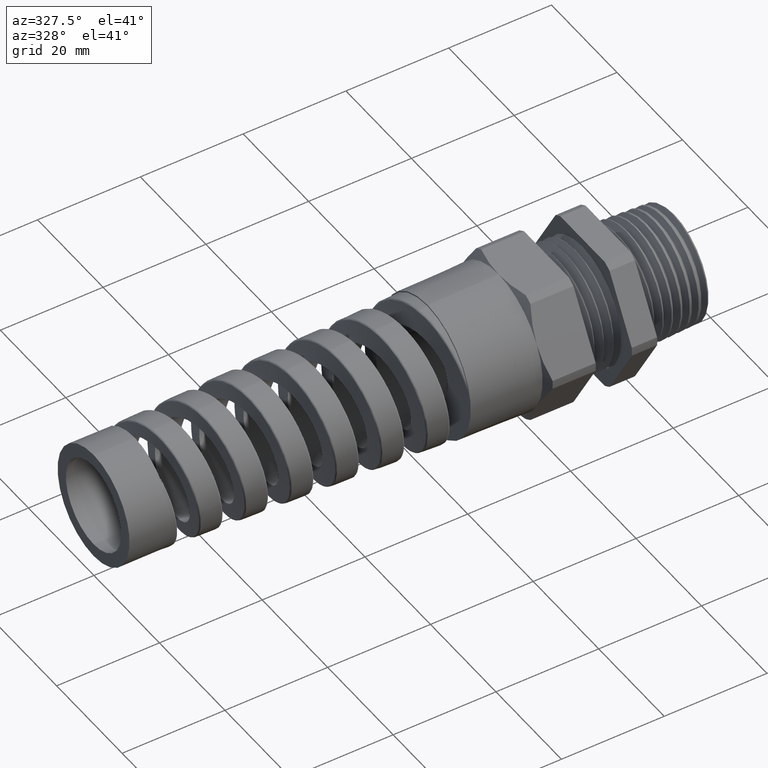
[diagram: clean part render]
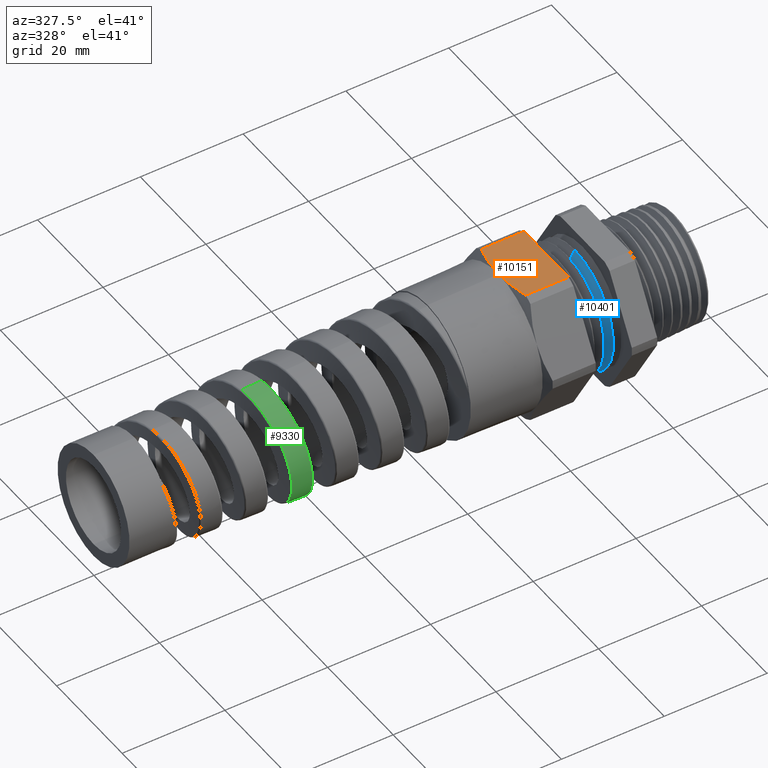
[diagram: same view with three faces highlighted in distinct colors, each labeled with its STEP entity id]
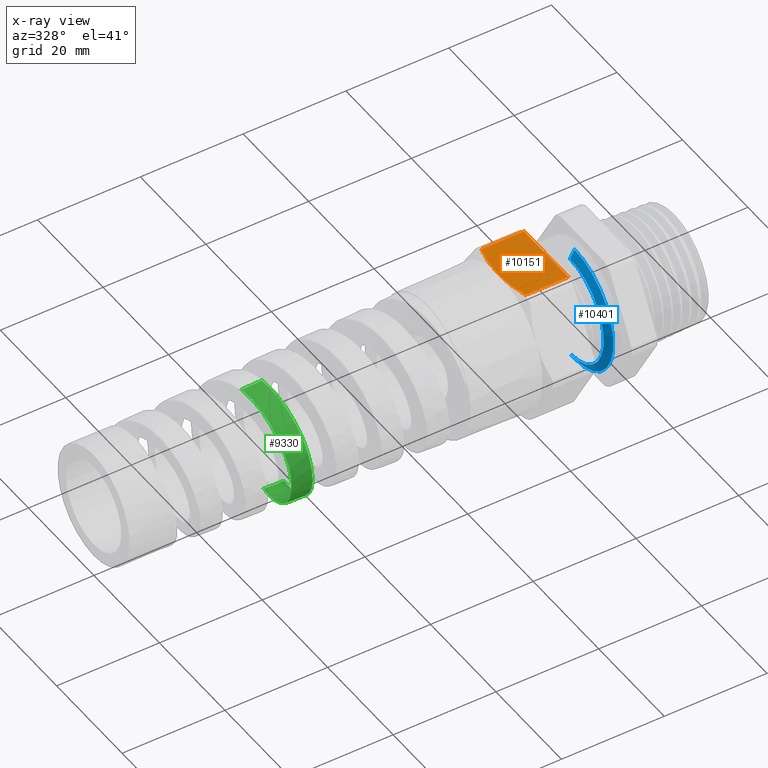
[diagram: x-ray of the same camera — body ghosted, the three highlighted faces saturated]
A machine part, auxiliary view with three faces highlighted in distinct colors.
The next image is the same camera in x-ray (body ghosted, the three faces saturated) — at least one of them is partly hidden behind the body in this view.
Their STEP definitions:

[orange] entity #10151 — the highlighted planar face has unit normal (0, 0, 1).
#3699 = CARTESIAN_POINT ( 'NONE',  ( -0.8375000000000000200, 0.0000000000000000000, 0.5299999999999999200 ) ) ;
#5476 = DIRECTION ( 'NONE',  ( 1.000000000000000000, 0.0000000000000000000, 0.0000000000000000000 ) ) ;
#5477 = VECTOR ( 'NONE', #5476, 39.37007874015748100 ) ;
#5478 = CARTESIAN_POINT ( 'NONE',  ( -2.533243884661831900, -0.2673218285138724300, 0.5299999999999999200 ) ) ;
#5479 = LINE ( 'NONE', #5478, #5477 ) ;
#5480 = CARTESIAN_POINT ( 'NONE',  ( -0.4708333333333333300, -0.2673218285138724300, 0.5299999999999999200 ) ) ;
#5491 = CARTESIAN_POINT ( 'NONE',  ( -0.8007805228795398200, -0.2673218285138724300, 0.5299999999999999200 ) ) ;
#5511 = CARTESIAN_POINT ( 'NONE',  ( -0.4708333333333333300, 0.2673218285138722600, 0.5299999999999999200 ) ) ;
#5512 = DIRECTION ( 'NONE',  ( 1.000000000000000000, 0.0000000000000000000, 0.0000000000000000000 ) ) ;
#5513 = VECTOR ( 'NONE', #5512, 39.37007874015748100 ) ;
#5514 = CARTESIAN_POINT ( 'NONE',  ( -2.533243884661831900, 0.2673218285138722600, 0.5299999999999999200 ) ) ;
#5515 = LINE ( 'NONE', #5514, #5513 ) ;
#5517 = CARTESIAN_POINT ( 'NONE',  ( -0.8007805228795398200, 0.2673218285138722600, 0.5299999999999999200 ) ) ;
#5559 = CARTESIAN_POINT ( 'NONE',  ( -0.8213051833091242800, 0.1800017858002748400, 0.5300000000000000300 ) ) ;
#5560 = CARTESIAN_POINT ( 'NONE',  ( -0.8120576945526086800, 0.2239487460126226800, 0.5300000000000000300 ) ) ;
#5561 = CARTESIAN_POINT ( 'NONE',  ( -0.8007805228795398200, 0.2673218285138722600, 0.5299999999999999200 ) ) ;
#5562 = B_SPLINE_CURVE_WITH_KNOTS ( 'NONE', 3,
 ( #5561, #5560, #5559, #5610, #5609, #5608, #5607, #5606 ),
 .UNSPECIFIED., .F., .F.,
 ( 4, 2, 2, 4 ),
 ( 0.007282999526850547600, 0.01069714918960657000, 0.01240422402098458100, 0.01411129885236259200 ),
 .UNSPECIFIED. ) ;
#5593 = DIRECTION ( 'NONE',  ( 0.0000000000000000000, 1.000000000000000000, 0.0000000000000000000 ) ) ;
#5594 = CARTESIAN_POINT ( 'NONE',  ( -0.8007805228795398200, -0.2673218285138724300, 0.5299999999999999200 ) ) ;
#5595 = CARTESIAN_POINT ( 'NONE',  ( -0.8064647693670959900, -0.2454596720255573200, 0.5299999999999998000 ) ) ;
#5596 = CARTESIAN_POINT ( 'NONE',  ( -0.8116548691931352300, -0.2233522006217770200, 0.5299999999999999200 ) ) ;
#5597 = CARTESIAN_POINT ( 'NONE',  ( -0.8207557576897001100, -0.1789257074002588400, 0.5299999999999999200 ) ) ;
#5598 = CARTESIAN_POINT ( 'NONE',  ( -0.8246545637602134000, -0.1566720308095854700, 0.5299999999999999200 ) ) ;
#5599 = CARTESIAN_POINT ( 'NONE',  ( -0.8341465868220292500, -0.08977423242168816600, 0.5299999999999999200 ) ) ;
#5600 = CARTESIAN_POINT ( 'NONE',  ( -0.8375000000000000200, -0.04499114512754565100, 0.5300000000000000300 ) ) ;
#5601 = CARTESIAN_POINT ( 'NONE',  ( -0.8375000000000000200, 0.0000000000000000000, 0.5299999999999999200 ) ) ;
#5602 = VECTOR ( 'NONE', #5593, 39.37007874015748100 ) ;
#5603 = CARTESIAN_POINT ( 'NONE',  ( -0.4708333333333333300, 0.4664000000000000400, 0.5299999999999999200 ) ) ;
#5604 = LINE ( 'NONE', #5603, #5602 ) ;
#5605 = B_SPLINE_CURVE_WITH_KNOTS ( 'NONE', 3,
 ( #5601, #5600, #5599, #5598, #5597, #5596, #5595, #5594 ),
 .UNSPECIFIED., .F., .F.,
 ( 4, 2, 2, 4 ),
 ( 0.01411129885236259200, 0.01752689908206323700, 0.01923469919691355900, 0.02094249931176388200 ),
 .UNSPECIFIED. ) ;
#5606 = CARTESIAN_POINT ( 'NONE',  ( -0.8375000000000000200, 0.0000000000000000000, 0.5299999999999999200 ) ) ;
#5607 = CARTESIAN_POINT ( 'NONE',  ( -0.8375000000000001300, 0.02248601894749255700, 0.5300000000000001400 ) ) ;
#5608 = CARTESIAN_POINT ( 'NONE',  ( -0.8366704751326139400, 0.04502350460591595500, 0.5300000000000000300 ) ) ;
#5609 = CARTESIAN_POINT ( 'NONE',  ( -0.8333698439661926200, 0.09020032554817343500, 0.5300000000000000300 ) ) ;
#5610 = CARTESIAN_POINT ( 'NONE',  ( -0.8308887136721119200, 0.1128690294926516700, 0.5300000000000001400 ) ) ;
#5661 = DIRECTION ( 'NONE',  ( 1.000000000000000000, 0.0000000000000000000, 0.0000000000000000000 ) ) ;
#5662 = DIRECTION ( 'NONE',  ( 0.0000000000000000000, 0.0000000000000000000, 1.000000000000000000 ) ) ;
#5663 = CARTESIAN_POINT ( 'NONE',  ( -2.533243884661831900, 0.2673218285138724300, 0.5299999999999999200 ) ) ;
#5664 = AXIS2_PLACEMENT_3D ( 'NONE', #5663, #5662, #5661 ) ;
#5665 = PLANE ( 'NONE',  #5664 ) ;
#5666 = FACE_OUTER_BOUND ( 'NONE', #10152, .T. ) ;
#9344 = VERTEX_POINT ( 'NONE', #3699 ) ;
#10077 = VERTEX_POINT ( 'NONE', #5491 ) ;
#10083 = VERTEX_POINT ( 'NONE', #5480 ) ;
#10085 = EDGE_CURVE ( 'NONE', #10077, #10083, #5479, .T. ) ;
#10093 = VERTEX_POINT ( 'NONE', #5517 ) ;
#10096 = EDGE_CURVE ( 'NONE', #10093, #10097, #5515, .T. ) ;
#10097 = VERTEX_POINT ( 'NONE', #5511 ) ;
#10129 = EDGE_CURVE ( 'NONE', #10093, #9344, #5562, .T. ) ;
#10130 = ORIENTED_EDGE ( 'NONE', *, *, #10131, .T. ) ;
#10131 = EDGE_CURVE ( 'NONE', #9344, #10077, #5605, .T. ) ;
#10132 = ORIENTED_EDGE ( 'NONE', *, *, #10085, .T. ) ;
#10133 = ORIENTED_EDGE ( 'NONE', *, *, #10134, .T. ) ;
#10134 = EDGE_CURVE ( 'NONE', #10083, #10097, #5604, .T. ) ;
#10151 = ADVANCED_FACE ( 'NONE', ( #5666 ), #5665, .T. ) ;
#10152 = EDGE_LOOP ( 'NONE', ( #10153, #10154, #10130, #10132, #10133 ) ) ;
#10153 = ORIENTED_EDGE ( 'NONE', *, *, #10096, .F. ) ;
#10154 = ORIENTED_EDGE ( 'NONE', *, *, #10129, .T. ) ;

[blue] entity #10401 — the highlighted conical surface has half-angle 60 deg.
#640 = CARTESIAN_POINT ( 'NONE',  ( -0.2902619214136949500, 5.332975976854832300E-017, 0.4045410714285714900 ) ) ;
#641 = CARTESIAN_POINT ( 'NONE',  ( -0.2902619214136949500, 0.0000000000000000000, -0.4045410714285714900 ) ) ;
#4207 = CARTESIAN_POINT ( 'NONE',  ( -0.2545476523511985800, 5.711752671223256000E-017, -0.4664000000000000400 ) ) ;
#4227 = DIRECTION ( 'NONE',  ( 0.5000000000000027800, 1.060575238724904800E-016, 0.8660254037844369300 ) ) ;
#4228 = VECTOR ( 'NONE', #4227, 39.37007874015748100 ) ;
#4229 = CARTESIAN_POINT ( 'NONE',  ( -0.2902619214136949500, 4.954199282486408100E-017, 0.4045410714285714900 ) ) ;
#4230 = LINE ( 'NONE', #4229, #4228 ) ;
#4231 = CARTESIAN_POINT ( 'NONE',  ( -0.2545476523511985800, 0.0000000000000000000, 0.4664000000000000400 ) ) ;
#4237 = DIRECTION ( 'NONE',  ( 0.5000000000000027800, 0.0000000000000000000, -0.8660254037844369300 ) ) ;
#4238 = VECTOR ( 'NONE', #4237, 39.37007874015748100 ) ;
#4239 = CARTESIAN_POINT ( 'NONE',  ( -0.2902619214136949500, 0.0000000000000000000, -0.4045410714285714900 ) ) ;
#4240 = LINE ( 'NONE', #4239, #4238 ) ;
#5322 = DIRECTION ( 'NONE',  ( 0.0000000000000000000, 0.0000000000000000000, -1.000000000000000000 ) ) ;
#5323 = DIRECTION ( 'NONE',  ( 1.000000000000000000, 0.0000000000000000000, 0.0000000000000000000 ) ) ;
#5324 = CARTESIAN_POINT ( 'NONE',  ( -0.2545476523511985800, 0.0000000000000000000, 0.0000000000000000000 ) ) ;
#5325 = AXIS2_PLACEMENT_3D ( 'NONE', #5324, #5323, #5322 ) ;
#5326 = CIRCLE ( 'NONE', #5325, 0.4664000000000000400 ) ;
#6017 = DIRECTION ( 'NONE',  ( 1.000000000000000000, 0.0000000000000000000, 0.0000000000000000000 ) ) ;
#6018 = AXIS2_PLACEMENT_3D ( 'NONE', #6024, #6017, #6080 ) ;
#6019 = CIRCLE ( 'NONE', #6018, 0.4045410714285714900 ) ;
#6020 = DIRECTION ( 'NONE',  ( 0.0000000000000000000, 0.0000000000000000000, -1.000000000000000000 ) ) ;
#6021 = DIRECTION ( 'NONE',  ( 1.000000000000000000, 0.0000000000000000000, 0.0000000000000000000 ) ) ;
#6022 = CARTESIAN_POINT ( 'NONE',  ( -0.2902619214136949500, 0.0000000000000000000, 0.0000000000000000000 ) ) ;
#6023 = AXIS2_PLACEMENT_3D ( 'NONE', #6022, #6021, #6020 ) ;
#6024 = CARTESIAN_POINT ( 'NONE',  ( -0.2902619214136949500, 0.0000000000000000000, 0.0000000000000000000 ) ) ;
#6025 = CONICAL_SURFACE ( 'NONE', #6023, 0.4045410714285714900, 1.047197551196594500 ) ;
#6030 = FACE_OUTER_BOUND ( 'NONE', #10402, .T. ) ;
#6080 = DIRECTION ( 'NONE',  ( 0.0000000000000000000, 0.0000000000000000000, -1.000000000000000000 ) ) ;
#9049 = VERTEX_POINT ( 'NONE', #641 ) ;
#9050 = VERTEX_POINT ( 'NONE', #640 ) ;
#9424 = VERTEX_POINT ( 'NONE', #4207 ) ;
#9435 = EDGE_CURVE ( 'NONE', #9049, #9424, #4240, .T. ) ;
#9438 = VERTEX_POINT ( 'NONE', #4231 ) ;
#9439 = EDGE_CURVE ( 'NONE', #9050, #9438, #4230, .T. ) ;
#10009 = EDGE_CURVE ( 'NONE', #9438, #9424, #5326, .T. ) ;
#10401 = ADVANCED_FACE ( 'NONE', ( #6030 ), #6025, .T. ) ;
#10402 = EDGE_LOOP ( 'NONE', ( #10403, #10404, #10406, #10458 ) ) ;
#10403 = ORIENTED_EDGE ( 'NONE', *, *, #9439, .F. ) ;
#10404 = ORIENTED_EDGE ( 'NONE', *, *, #10405, .T. ) ;
#10405 = EDGE_CURVE ( 'NONE', #9050, #9049, #6019, .T. ) ;
#10406 = ORIENTED_EDGE ( 'NONE', *, *, #9435, .T. ) ;
#10458 = ORIENTED_EDGE ( 'NONE', *, *, #10009, .F. ) ;

[green] entity #9330 — the highlighted conical surface has half-angle 2.001 deg.
#2831 = CARTESIAN_POINT ( 'NONE',  ( -2.807587699846668000, 9.922199308073163500E-013, 0.4611820221597691700 ) ) ;
#3057 = CARTESIAN_POINT ( 'NONE',  ( -2.651136986285954000, -1.076830573665510200E-012, 0.4666470690913080400 ) ) ;
#3077 = DIRECTION ( 'NONE',  ( 0.9993904554178625300, 0.0000000000000000000, -0.03491013634572581700 ) ) ;
#3078 = VECTOR ( 'NONE', #3077, 39.37007874015748900 ) ;
#3079 = CARTESIAN_POINT ( 'NONE',  ( -0.8375000000000000200, 0.0000000000000000000, -0.5299999999999999200 ) ) ;
#3080 = LINE ( 'NONE', #3079, #3078 ) ;
#3132 = DIRECTION ( 'NONE',  ( 0.9993904554178625300, 4.275258673359080400E-018, 0.03491013634572581700 ) ) ;
#3133 = VECTOR ( 'NONE', #3132, 39.37007874015748900 ) ;
#3134 = CARTESIAN_POINT ( 'NONE',  ( -0.8375000000000000200, 6.490628035480970000E-017, 0.5299999999999999200 ) ) ;
#3135 = LINE ( 'NONE', #3134, #3133 ) ;
#3230 = CARTESIAN_POINT ( 'NONE',  ( -2.637429450301935800, -2.192460996810594900E-016, -0.4671258929059360900 ) ) ;
#3332 = CARTESIAN_POINT ( 'NONE',  ( -2.480944283468905300, 4.828263417522309700E-013, -0.4725921433394972300 ) ) ;
#3525 = FACE_OUTER_BOUND ( 'NONE', #9331, .T. ) ;
#3541 = CARTESIAN_POINT ( 'NONE',  ( -2.795136411686939000, -0.1052400094915068900, 0.4497177628423265600 ) ) ;
#3542 = CARTESIAN_POINT ( 'NONE',  ( -2.800492093053307500, -0.06045924762033414600, 0.4584620319442229100 ) ) ;
#3543 = CARTESIAN_POINT ( 'NONE',  ( -2.804023711412094900, -0.03035162848727688800, 0.4613065173673990800 ) ) ;
#3544 = CARTESIAN_POINT ( 'NONE',  ( -2.807587699846668000, 9.922199308073163500E-013, 0.4611820221597691700 ) ) ;
#3545 = B_SPLINE_CURVE_WITH_KNOTS ( 'NONE', 3,
 ( #3544, #3543, #3542, #3541, #3622, #3621, #3620, #3619, #3618, #3617, #3616, #3615, #3614, #3613, #3612, #3611, #3610, #3609, #3608, #3607, #3606, #3605, #3604, #3603, #3602, #3601, #3600, #3599, #3598, #3597, #3596, #3595, #3594, #3593, #3592, #3591, #3590, #3589, #3588, #3587, #3586, #3585, #3584, #3583, #3582, #3581, #3580, #3579, #3578 ),
 .UNSPECIFIED., .F., .F.,
 ( 4, 2, 2, 2, 2, 2, 2, 2, 2, 2, 2, 2, 2, 1, 2, 2, 2, 2, 2, 2, 2, 2, 2, 2, 4 ),
 ( 0.1741171640495946000, 0.1764704202268398400, 0.1776470483154624600, 0.1788236764040850900, 0.1811769325813303300, 0.1835301887585756000, 0.1847068168471982200, 0.1858834449358208500, 0.1882367011130660900, 0.1894133292016887400, 0.1905899572903113600, 0.1929432134675566100, 0.1941198415561792300, 0.1952964696448018500, 0.1964730977334245000, 0.1976497258220471200, 0.2000029819992923700, 0.2011796100879150200, 0.2023562381765376400, 0.2047094943537828800, 0.2058861224424055100, 0.2070627505310281300, 0.2094160067082733700, 0.2105926347968959900, 0.2117692628855186200 ),
 .UNSPECIFIED. ) ;
#3546 = DIRECTION ( 'NONE',  ( 0.0000000000000000000, 0.0000000000000000000, -1.000000000000000000 ) ) ;
#3547 = DIRECTION ( 'NONE',  ( 1.000000000000000000, 0.0000000000000000000, 0.0000000000000000000 ) ) ;
#3548 = CARTESIAN_POINT ( 'NONE',  ( -0.8375000000000000200, 0.0000000000000000000, 0.0000000000000000000 ) ) ;
#3549 = AXIS2_PLACEMENT_3D ( 'NONE', #3548, #3547, #3546 ) ;
#3550 = CONICAL_SURFACE ( 'NONE', #3549, 0.5299999999999999200, 0.03491723117042447300 ) ;
#3578 = CARTESIAN_POINT ( 'NONE',  ( -2.637429450301935800, -2.192460996810594900E-016, -0.4671258929059360900 ) ) ;
#3579 = CARTESIAN_POINT ( 'NONE',  ( -2.639183039898217700, -0.01511945025205419700, -0.4670646375161444100 ) ) ;
#3580 = CARTESIAN_POINT ( 'NONE',  ( -2.640937022890474900, -0.03023540582447356600, -0.4662710389713729500 ) ) ;
#3581 = CARTESIAN_POINT ( 'NONE',  ( -2.644460619675589500, -0.06045850000587507700, -0.4631983213901420500 ) ) ;
#3582 = CARTESIAN_POINT ( 'NONE',  ( -2.646239786001535900, -0.07564420825383591500, -0.4609018378783794600 ) ) ;
#3583 = CARTESIAN_POINT ( 'NONE',  ( -2.651556708881387200, -0.1205663710013947800, -0.4518219448428105200 ) ) ;
#3584 = CARTESIAN_POINT ( 'NONE',  ( -2.655054549981320700, -0.1495071029367799300, -0.4429402740150746300 ) ) ;
#3585 = CARTESIAN_POINT ( 'NONE',  ( -2.660330258797992000, -0.1914358354455112900, -0.4254895609963165700 ) ) ;
#3586 = CARTESIAN_POINT ( 'NONE',  ( -2.662093110329422100, -0.2051633562483127800, -0.4189797934711633800 ) ) ;
#3587 = CARTESIAN_POINT ( 'NONE',  ( -2.665644027803590400, -0.2321044496264778900, -0.4045342264365257600 ) ) ;
#3588 = CARTESIAN_POINT ( 'NONE',  ( -2.667424423790629300, -0.2452531888805134800, -0.3966235543548476400 ) ) ;
#3589 = CARTESIAN_POINT ( 'NONE',  ( -2.672717696408778200, -0.2830933893852984300, -0.3712638340076335800 ) ) ;
#3590 = CARTESIAN_POINT ( 'NONE',  ( -2.676218107114504400, -0.3064583500905960800, -0.3520649262199427300 ) ) ;
#3591 = CARTESIAN_POINT ( 'NONE',  ( -2.681522523143604600, -0.3386946698824976900, -0.3198232169543266400 ) ) ;
#3592 = CARTESIAN_POINT ( 'NONE',  ( -2.683308979531188900, -0.3490206436703559000, -0.3084306676410162300 ) ) ;
#3593 = CARTESIAN_POINT ( 'NONE',  ( -2.686860471130052600, -0.3683796783416425400, -0.2848259293468500800 ) ) ;
#3594 = CARTESIAN_POINT ( 'NONE',  ( -2.688624503056605600, -0.3774146653486354900, -0.2726283147935502600 ) ) ;
#3595 = CARTESIAN_POINT ( 'NONE',  ( -2.693908391847892300, -0.4026332265783787400, -0.2348822487074093400 ) ) ;
#3596 = CARTESIAN_POINT ( 'NONE',  ( -2.697420346064263200, -0.4169482542416849700, -0.2081915201282354400 ) ) ;
#3597 = CARTESIAN_POINT ( 'NONE',  ( -2.702768145745611900, -0.4345401733763098500, -0.1657963296156313700 ) ) ;
#3598 = CARTESIAN_POINT ( 'NONE',  ( -2.704550057107937300, -0.4397008525611458800, -0.1513771983015194100 ) ) ;
#3599 = CARTESIAN_POINT ( 'NONE',  ( -2.708086317412958800, -0.4485203830830810100, -0.1223378576021497700 ) ) ;
#3600 = CARTESIAN_POINT ( 'NONE',  ( -2.711608735338862700, -0.4558842898512879800, -0.09298813143219281100 ) ) ;
#3601 = CARTESIAN_POINT ( 'NONE',  ( -2.715138099334065500, -0.4603659073176208900, -0.06302792343545174400 ) ) ;
#3602 = CARTESIAN_POINT ( 'NONE',  ( -2.718687232897174100, -0.4633799847806564000, -0.03275882787478753100 ) ) ;
#3603 = CARTESIAN_POINT ( 'NONE',  ( -2.720481210052793800, -0.4641495901675852200, -0.01738661514582222300 ) ) ;
#3604 = CARTESIAN_POINT ( 'NONE',  ( -2.725818375945271700, -0.4641739313200749000, 0.02835697268841079800 ) ) ;
#3605 = CARTESIAN_POINT ( 'NONE',  ( -2.729331740827114900, -0.4612129391734876600, 0.05846787133091559100 ) ) ;
#3606 = CARTESIAN_POINT ( 'NONE',  ( -2.734640331576475300, -0.4523879234091521800, 0.1030552625201237900 ) ) ;
#3607 = CARTESIAN_POINT ( 'NONE',  ( -2.736416120999980400, -0.4487105784302055600, 0.1178205866125122700 ) ) ;
#3608 = CARTESIAN_POINT ( 'NONE',  ( -2.739996903552203400, -0.4398343371088394000, 0.1471484027472137700 ) ) ;
#3609 = CARTESIAN_POINT ( 'NONE',  ( -2.741778691908147700, -0.4346895212467263800, 0.1615222132665777000 ) ) ;
#3610 = CARTESIAN_POINT ( 'NONE',  ( -2.747094347464632300, -0.4172869794869182900, 0.2035526612590038400 ) ) ;
#3611 = CARTESIAN_POINT ( 'NONE',  ( -2.750612688416653700, -0.4030465857145857900, 0.2302373065185141500 ) ) ;
#3612 = CARTESIAN_POINT ( 'NONE',  ( -2.755956561893482700, -0.3776818028164720700, 0.2682236120387370100 ) ) ;
#3613 = CARTESIAN_POINT ( 'NONE',  ( -2.757756730818491600, -0.3685073491971721500, 0.2805916503648037700 ) ) ;
#3614 = CARTESIAN_POINT ( 'NONE',  ( -2.761321386188513700, -0.3491723828235392400, 0.3041261553418289600 ) ) ;
#3615 = CARTESIAN_POINT ( 'NONE',  ( -2.763092878550678300, -0.3389826930008501500, 0.3153479171425334600 ) ) ;
#3616 = CARTESIAN_POINT ( 'NONE',  ( -2.768402617763405300, -0.3068810363750004200, 0.3474076689701696100 ) ) ;
#3617 = CARTESIAN_POINT ( 'NONE',  ( -2.771941199094843300, -0.2834140945781337700, 0.3666807015627846500 ) ) ;
#3618 = CARTESIAN_POINT ( 'NONE',  ( -2.779124849433585200, -0.2324013424451694400, 0.4006692980557001700 ) ) ;
#3619 = CARTESIAN_POINT ( 'NONE',  ( -2.782659051047477600, -0.2056342375818162300, 0.4148766098743846300 ) ) ;
#3620 = CARTESIAN_POINT ( 'NONE',  ( -2.787978690102598500, -0.1636739915286239400, 0.4321582497326582600 ) ) ;
#3621 = CARTESIAN_POINT ( 'NONE',  ( -2.789755101747614800, -0.1493834491212157900, 0.4372423183278369400 ) ) ;
#3622 = CARTESIAN_POINT ( 'NONE',  ( -2.793332230126928100, -0.1201819079397608700, 0.4460237387040857900 ) ) ;
#3623 = CARTESIAN_POINT ( 'NONE',  ( -2.643985349014179100, -0.06147284221207871500, 0.4630908195622360800 ) ) ;
#3624 = CARTESIAN_POINT ( 'NONE',  ( -2.642189505356862300, -0.07681311490548117800, 0.4608543081355892500 ) ) ;
#3625 = CARTESIAN_POINT ( 'NONE',  ( -2.636848702807322600, -0.1220038497870235500, 0.4519770659567755600 ) ) ;
#3626 = CARTESIAN_POINT ( 'NONE',  ( -2.633318807765827200, -0.1512974936548318600, 0.4431663282888095300 ) ) ;
#3627 = CARTESIAN_POINT ( 'NONE',  ( -2.627968175987776400, -0.1939695358062557800, 0.4255912751908085300 ) ) ;
#3628 = CARTESIAN_POINT ( 'NONE',  ( -2.626165942534543600, -0.2080538652931166200, 0.4189580139697404200 ) ) ;
#3629 = CARTESIAN_POINT ( 'NONE',  ( -2.622592550493066700, -0.2352739523622699700, 0.4044442189373943000 ) ) ;
#3630 = CARTESIAN_POINT ( 'NONE',  ( -2.620817975767061100, -0.2484384464111268900, 0.3965621177320233800 ) ) ;
#3631 = CARTESIAN_POINT ( 'NONE',  ( -2.615502826612901900, -0.2866247443413313400, 0.3710869445539156100 ) ) ;
#3632 = CARTESIAN_POINT ( 'NONE',  ( -2.611970607611274500, -0.3103519931013947200, 0.3516826996178888900 ) ) ;
#3633 = CARTESIAN_POINT ( 'NONE',  ( -2.604794679696803300, -0.3542007456468319600, 0.3078564696407213900 ) ) ;
#3634 = CARTESIAN_POINT ( 'NONE',  ( -2.601259334448708900, -0.3736638006433154500, 0.2840773344507642200 ) ) ;
#3635 = CARTESIAN_POINT ( 'NONE',  ( -2.595953672384260900, -0.3991514945285559700, 0.2459152845159645300 ) ) ;
#3636 = CARTESIAN_POINT ( 'NONE',  ( -2.594183275118105300, -0.4070348023655562300, 0.2327662174003306800 ) ) ;
#3637 = CARTESIAN_POINT ( 'NONE',  ( -2.590621833048869100, -0.4215501814615085800, 0.2055954885816081700 ) ) ;
#3638 = CARTESIAN_POINT ( 'NONE',  ( -2.588823165683412000, -0.4282018467765762400, 0.1915102530232685500 ) ) ;
#3639 = CARTESIAN_POINT ( 'NONE',  ( -2.583483840640515600, -0.4458453053253663700, 0.1488007529041821000 ) ) ;
#3640 = CARTESIAN_POINT ( 'NONE',  ( -2.579969359212491500, -0.4546908519538107000, 0.1195110231003423100 ) ) ;
#3641 = CARTESIAN_POINT ( 'NONE',  ( -2.572887218379607900, -0.4666240720980021100, 0.05933640557750040300 ) ) ;
#3642 = CARTESIAN_POINT ( 'NONE',  ( -2.569292679230601000, -0.4696593687592688400, 0.02820708323051704000 ) ) ;
#3643 = CARTESIAN_POINT ( 'NONE',  ( -2.562221371957521300, -0.4695869052132553600, -0.03310147798289329200 ) ) ;
#3644 = CARTESIAN_POINT ( 'NONE',  ( -2.558711212830459700, -0.4665777237344829200, -0.06355640244682425600 ) ) ;
#3645 = CARTESIAN_POINT ( 'NONE',  ( -2.553378565135735500, -0.4575280386662709000, -0.1089222790461434500 ) ) ;
#3646 = CARTESIAN_POINT ( 'NONE',  ( -2.551585622069322500, -0.4537311846969486200, -0.1240237148074780900 ) ) ;
#3647 = CARTESIAN_POINT ( 'NONE',  ( -2.548038706460884500, -0.4447681341658259500, -0.1534655913980205500 ) ) ;
#3648 = CARTESIAN_POINT ( 'NONE',  ( -2.546275679864699300, -0.4395899065939067300, -0.1678873656289466300 ) ) ;
#3649 = CARTESIAN_POINT ( 'NONE',  ( -2.542753365238197700, -0.4278663439453828100, -0.1961417695904093300 ) ) ;
#3650 = CARTESIAN_POINT ( 'NONE',  ( -2.540993935493445200, -0.4213209906971960300, -0.2099743736247304000 ) ) ;
#3651 = CARTESIAN_POINT ( 'NONE',  ( -2.537460878139777200, -0.4068506831153268500, -0.2370427885005967600 ) ) ;
#3652 = CARTESIAN_POINT ( 'NONE',  ( -2.535681150824493600, -0.3988959620223712600, -0.2503226971089955200 ) ) ;
#3653 = CARTESIAN_POINT ( 'NONE',  ( -2.530335016762577500, -0.3730834580264692500, -0.2889343224543352000 ) ) ;
#3654 = CARTESIAN_POINT ( 'NONE',  ( -2.526826306910364000, -0.3536224553604916900, -0.3126005887979884700 ) ) ;
#3655 = CARTESIAN_POINT ( 'NONE',  ( -2.521547998647800400, -0.3211759266279171600, -0.3450869539569010900 ) ) ;
#3656 = CARTESIAN_POINT ( 'NONE',  ( -2.519785718967399100, -0.3098140577355607600, -0.3554099565110299700 ) ) ;
#3657 = CARTESIAN_POINT ( 'NONE',  ( -2.516237635840511200, -0.2859715258936973400, -0.3750174645956046400 ) ) ;
#3658 = CARTESIAN_POINT ( 'NONE',  ( -2.514449921232654500, -0.2734732880675167000, -0.3843060031181097000 ) ) ;
#3659 = CARTESIAN_POINT ( 'NONE',  ( -2.509105097113374100, -0.2348216450338193300, -0.4101639347642060400 ) ) ;
#3660 = CARTESIAN_POINT ( 'NONE',  ( -2.505601345261989200, -0.2077838480111254000, -0.4246082697045304200 ) ) ;
#3661 = CARTESIAN_POINT ( 'NONE',  ( -2.500332997118732700, -0.1654068470767133300, -0.4422423536672187000 ) ) ;
#3662 = CARTESIAN_POINT ( 'NONE',  ( -2.498574586309853600, -0.1509756267708597100, -0.4474434621365971900 ) ) ;
#3663 = CARTESIAN_POINT ( 'NONE',  ( -2.495035791015078400, -0.1214901012166215600, -0.4564604573659109500 ) ) ;
#3664 = CARTESIAN_POINT ( 'NONE',  ( -2.493250424950050000, -0.1063914211613538100, -0.4602770678809419100 ) ) ;
#3665 = CARTESIAN_POINT ( 'NONE',  ( -2.487951573725713400, -0.06112358928258343500, -0.4693863580163662500 ) ) ;
#3666 = CARTESIAN_POINT ( 'NONE',  ( -2.484461124599860200, -0.03068605542981349100, -0.4724692950546342000 ) ) ;
#3667 = CARTESIAN_POINT ( 'NONE',  ( -2.480944283468905300, 4.828263417522309700E-013, -0.4725921433394972300 ) ) ;
#3668 = B_SPLINE_CURVE_WITH_KNOTS ( 'NONE', 3,
 ( #3667, #3666, #3665, #3664, #3663, #3662, #3661, #3660, #3659, #3658, #3657, #3656, #3655, #3654, #3653, #3652, #3651, #3650, #3649, #3648, #3647, #3646, #3645, #3644, #3643, #3642, #3641, #3640, #3639, #3638, #3637, #3636, #3635, #3634, #3633, #3632, #3631, #3630, #3629, #3628, #3627, #3626, #3625, #3624, #3623, #3707, #3706, #3705 ),
 .UNSPECIFIED., .F., .F.,
 ( 4, 2, 2, 2, 2, 2, 2, 2, 2, 2, 2, 2, 2, 2, 2, 2, 2, 2, 2, 2, 2, 2, 2, 4 ),
 ( 0.2560842720323849900, 0.2584496910050815300, 0.2596324004914298300, 0.2608151099777781300, 0.2631805289504746700, 0.2643632384368229700, 0.2655459479231712700, 0.2679113668958678100, 0.2690940763822161100, 0.2702767858685644100, 0.2714594953549126500, 0.2726422048412609500, 0.2750076238139574900, 0.2773730427866540900, 0.2797384617593506300, 0.2809211712456989300, 0.2821038807320472300, 0.2844692997047437700, 0.2868347186774403700, 0.2880174281637886100, 0.2892001376501369100, 0.2915655566228335100, 0.2927482661091817500, 0.2939309755955300500 ),
 .UNSPECIFIED. ) ;
#3705 = CARTESIAN_POINT ( 'NONE',  ( -2.651136986285954000, -1.076830573665510200E-012, 0.4666470690913080400 ) ) ;
#3706 = CARTESIAN_POINT ( 'NONE',  ( -2.649358598378880100, -0.01531454783830707300, 0.4667091907214873100 ) ) ;
#3707 = CARTESIAN_POINT ( 'NONE',  ( -2.647575732036889600, -0.03067186776062694900, 0.4660194802173546200 ) ) ;
#9251 = VERTEX_POINT ( 'NONE', #2831 ) ;
#9266 = VERTEX_POINT ( 'NONE', #3057 ) ;
#9271 = EDGE_CURVE ( 'NONE', #9304, #9310, #3080, .T. ) ;
#9281 = EDGE_CURVE ( 'NONE', #9251, #9266, #3135, .T. ) ;
#9304 = VERTEX_POINT ( 'NONE', #3230 ) ;
#9310 = VERTEX_POINT ( 'NONE', #3332 ) ;
#9330 = ADVANCED_FACE ( 'NONE', ( #3525 ), #3550, .T. ) ;
#9331 = EDGE_LOOP ( 'NONE', ( #9332, #9333, #9335, #9336 ) ) ;
#9332 = ORIENTED_EDGE ( 'NONE', *, *, #9281, .F. ) ;
#9333 = ORIENTED_EDGE ( 'NONE', *, *, #9334, .T. ) ;
#9334 = EDGE_CURVE ( 'NONE', #9251, #9304, #3545, .T. ) ;
#9335 = ORIENTED_EDGE ( 'NONE', *, *, #9271, .T. ) ;
#9336 = ORIENTED_EDGE ( 'NONE', *, *, #9337, .T. ) ;
#9337 = EDGE_CURVE ( 'NONE', #9310, #9266, #3668, .T. ) ;